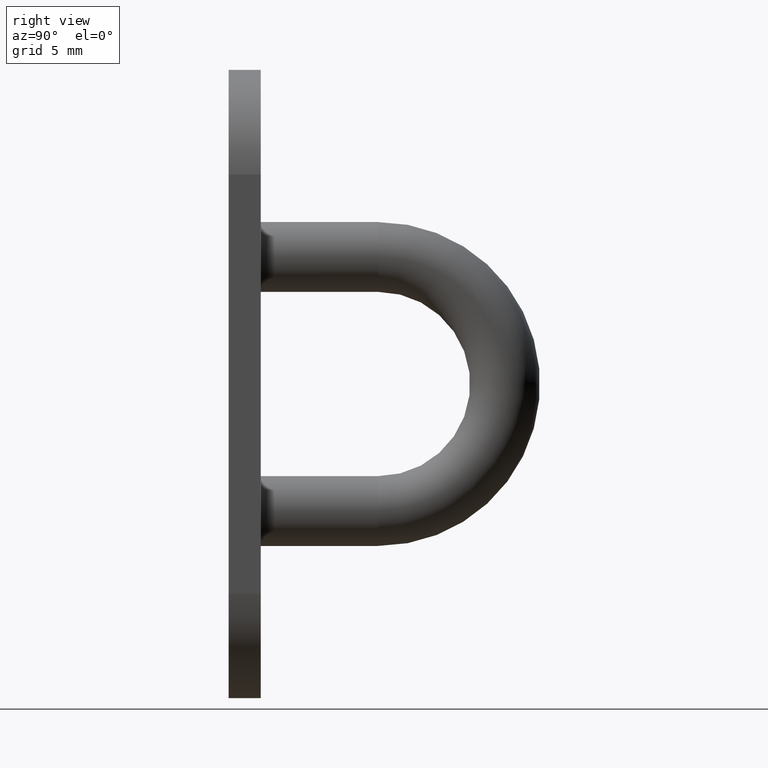
[diagram: clean part render]
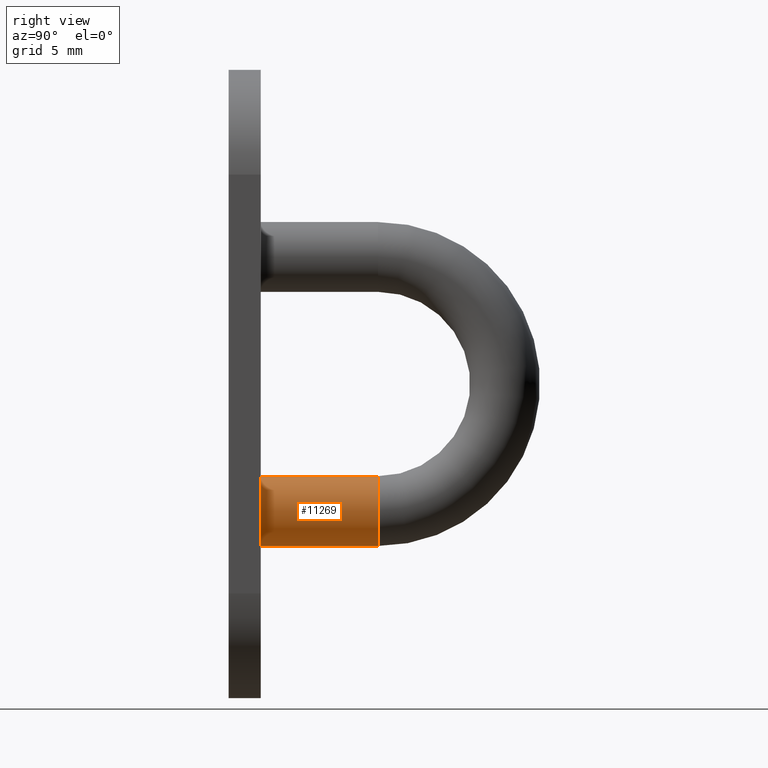
[diagram: same view with one face highlighted and labeled with its STEP entity id]
A machine part, right view. The second image highlights one B-rep face of the part: STEP entity #11269.
In plain terms, the highlighted cylindrical surface (edge-blend (fillet) strip) has radius 2.5 mm, axis along (0, -1, -0).
Its self-contained STEP definition (entity closure, byte-faithful):
#55 = DIRECTION ( 'NONE',  ( 0.0000000000000000000, 0.0000000000000000000, 1.000000000000000000 ) ) ;
#129 = ORIENTED_EDGE ( 'NONE', *, *, #5420, .F. ) ;
#290 = CARTESIAN_POINT ( 'NONE',  ( 0.0000000000000000000, 10.69999999999999900, -11.60000000000000100 ) ) ;
#918 = VERTEX_POINT ( 'NONE', #11177 ) ;
#1028 = DIRECTION ( 'NONE',  ( 0.0000000000000000000, -1.000000000000000000, -8.106184467181343200E-017 ) ) ;
#1600 = CARTESIAN_POINT ( 'NONE',  ( 0.0000000000000000000, 10.69999999999999900, -9.099999999999999600 ) ) ;
#2326 = AXIS2_PLACEMENT_3D ( 'NONE', #6654, #4444, #5527 ) ;
#2818 = VECTOR ( 'NONE', #1028, 1000.000000000000000 ) ;
#3227 = EDGE_CURVE ( 'NONE', #7579, #918, #9650, .T. ) ;
#3764 = DIRECTION ( 'NONE',  ( 0.0000000000000000000, 1.000000000000000000, 1.224646799147353200E-016 ) ) ;
#4444 = DIRECTION ( 'NONE',  ( 0.0000000000000000000, -1.000000000000000000, -8.106184467181343200E-017 ) ) ;
#4557 = EDGE_CURVE ( 'NONE', #10023, #7579, #11569, .T. ) ;
#5141 = DIRECTION ( 'NONE',  ( 0.0000000000000000000, -1.000000000000000000, -8.106184467181343200E-017 ) ) ;
#5420 = EDGE_CURVE ( 'NONE', #918, #8490, #8012, .T. ) ;
#5527 = DIRECTION ( 'NONE',  ( 0.0000000000000000000, 0.0000000000000000000, -1.000000000000000000 ) ) ;
#6130 = ORIENTED_EDGE ( 'NONE', *, *, #12927, .T. ) ;
#6654 = CARTESIAN_POINT ( 'NONE',  ( 0.0000000000000000000, 10.69999999999999900, -9.099999999999999600 ) ) ;
#6858 = LINE ( 'NONE', #9263, #10590 ) ;
#7579 = VERTEX_POINT ( 'NONE', #290 ) ;
#7809 = EDGE_LOOP ( 'NONE', ( #12999, #6130, #129, #10183 ) ) ;
#8012 = CIRCLE ( 'NONE', #10573, 2.500000000000000400 ) ;
#8244 = CARTESIAN_POINT ( 'NONE',  ( 0.0000000000000000000, 2.299999999999999800, -9.099999999999999600 ) ) ;
#8490 = VERTEX_POINT ( 'NONE', #9076 ) ;
#9076 = CARTESIAN_POINT ( 'NONE',  ( 3.061616997868383600E-016, 2.299999999999999800, -6.599999999999999600 ) ) ;
#9263 = CARTESIAN_POINT ( 'NONE',  ( 3.061616997868383600E-016, 10.69999999999999900, -6.599999999999999600 ) ) ;
#9650 = LINE ( 'NONE', #11374, #2818 ) ;
#9730 = AXIS2_PLACEMENT_3D ( 'NONE', #1600, #3764, #12349 ) ;
#9984 = CYLINDRICAL_SURFACE ( 'NONE', #2326, 2.500000000000000400 ) ;
#10023 = VERTEX_POINT ( 'NONE', #11478 ) ;
#10183 = ORIENTED_EDGE ( 'NONE', *, *, #3227, .F. ) ;
#10422 = DIRECTION ( 'NONE',  ( -0.0000000000000000000, -1.000000000000000000, -0.0000000000000000000 ) ) ;
#10573 = AXIS2_PLACEMENT_3D ( 'NONE', #8244, #10422, #55 ) ;
#10590 = VECTOR ( 'NONE', #5141, 1000.000000000000000 ) ;
#11177 = CARTESIAN_POINT ( 'NONE',  ( 0.0000000000000000000, 2.299999999999999800, -11.60000000000000100 ) ) ;
#11269 = ADVANCED_FACE ( 'NONE', ( #11439 ), #9984, .T. ) ;
#11374 = CARTESIAN_POINT ( 'NONE',  ( 0.0000000000000000000, 10.69999999999999900, -11.60000000000000100 ) ) ;
#11439 = FACE_OUTER_BOUND ( 'NONE', #7809, .T. ) ;
#11478 = CARTESIAN_POINT ( 'NONE',  ( 3.061616997868383600E-016, 10.69999999999999900, -6.599999999999999600 ) ) ;
#11569 = CIRCLE ( 'NONE', #9730, 2.500000000000000400 ) ;
#12349 = DIRECTION ( 'NONE',  ( 0.0000000000000000000, 0.0000000000000000000, 1.000000000000000000 ) ) ;
#12927 = EDGE_CURVE ( 'NONE', #10023, #8490, #6858, .T. ) ;
#12999 = ORIENTED_EDGE ( 'NONE', *, *, #4557, .F. ) ;